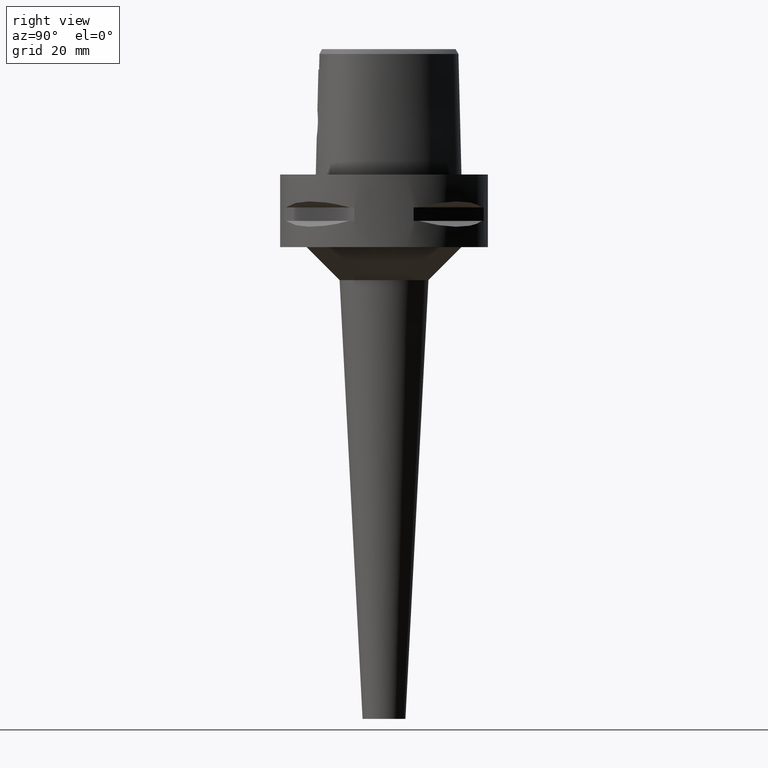
[diagram: clean part render]
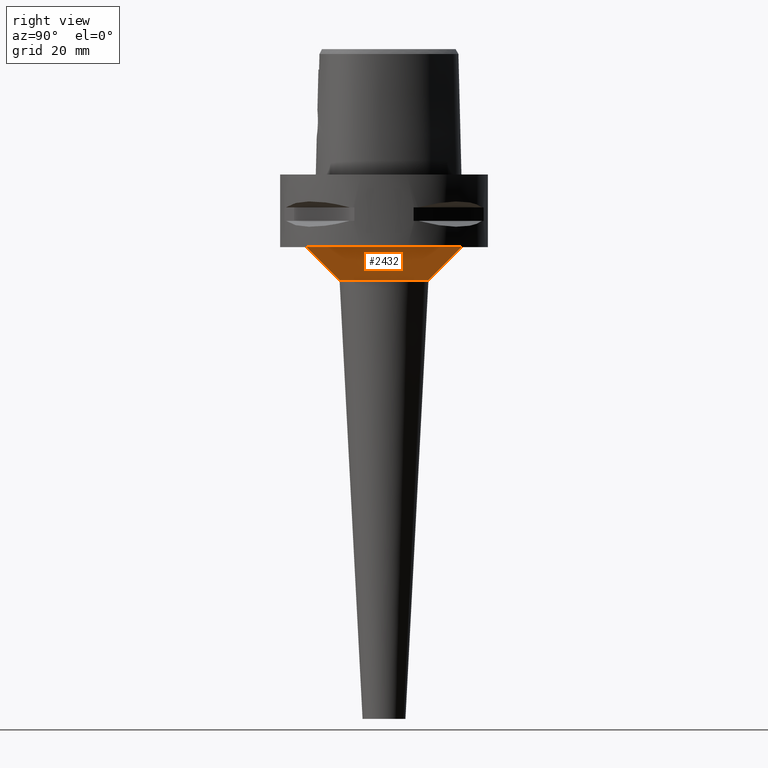
[diagram: same view with one face highlighted and labeled with its STEP entity id]
A machine part, right view. The second image highlights one B-rep face of the part: STEP entity #2432.
In plain terms, the highlighted conical surface has half-angle 45 deg.
Its self-contained STEP definition (entity closure, byte-faithful):
#509=CARTESIAN_POINT('',(0.E0,0.E0,-2.2E1));
#510=DIRECTION('',(0.E0,0.E0,-1.E0));
#511=DIRECTION('',(0.E0,1.E0,0.E0));
#512=AXIS2_PLACEMENT_3D('',#509,#510,#511);
#517=DIRECTION('',(0.E0,7.071067811865E-1,-7.071067811866E-1));
#518=VECTOR('',#517,1.414213562373E1);
#519=CARTESIAN_POINT('',(0.E0,-2.347023464464E1,-2.2E1));
#520=LINE('',#519,#518);
#532=DIRECTION('',(0.E0,-7.071067811865E-1,-7.071067811866E-1));
#533=VECTOR('',#532,1.414213562373E1);
#534=CARTESIAN_POINT('',(0.E0,2.347023464464E1,-2.2E1));
#535=LINE('',#534,#533);
#546=CARTESIAN_POINT('',(0.E0,0.E0,-3.2E1));
#547=DIRECTION('',(0.E0,0.E0,1.E0));
#548=DIRECTION('',(0.E0,-1.E0,0.E0));
#549=AXIS2_PLACEMENT_3D('',#546,#547,#548);
#1518=CARTESIAN_POINT('',(0.E0,-2.347023464464E1,-2.2E1));
#1519=CARTESIAN_POINT('',(0.E0,2.347023464464E1,-2.2E1));
#1520=VERTEX_POINT('',#1518);
#1521=VERTEX_POINT('',#1519);
#1522=CARTESIAN_POINT('',(0.E0,1.347023464464E1,-3.2E1));
#1523=VERTEX_POINT('',#1522);
#1524=CARTESIAN_POINT('',(0.E0,-1.347023464464E1,-3.2E1));
#1525=VERTEX_POINT('',#1524);
#2420=CARTESIAN_POINT('',(0.E0,0.E0,-2.7E1));
#2421=DIRECTION('',(0.E0,0.E0,1.E0));
#2422=DIRECTION('',(0.E0,1.E0,0.E0));
#2423=AXIS2_PLACEMENT_3D('',#2420,#2421,#2422);
#2424=CONICAL_SURFACE('',#2423,1.847023464464E1,4.5E1);
#2425=ORIENTED_EDGE('',*,*,#2410,.T.);
#2427=ORIENTED_EDGE('',*,*,#2426,.F.);
#2428=ORIENTED_EDGE('',*,*,#2413,.F.);
#2429=ORIENTED_EDGE('',*,*,#2400,.F.);
#2430=EDGE_LOOP('',(#2425,#2427,#2428,#2429));
#2431=FACE_OUTER_BOUND('',#2430,.F.);
#513=CIRCLE('',#512,2.347023464464E1);
#550=CIRCLE('',#549,1.347023464464E1);
#2400=EDGE_CURVE('',#1521,#1520,#513,.T.);
#2410=EDGE_CURVE('',#1521,#1523,#535,.T.);
#2413=EDGE_CURVE('',#1520,#1525,#520,.T.);
#2426=EDGE_CURVE('',#1525,#1523,#550,.T.);
#2432=ADVANCED_FACE('',(#2431),#2424,.T.);